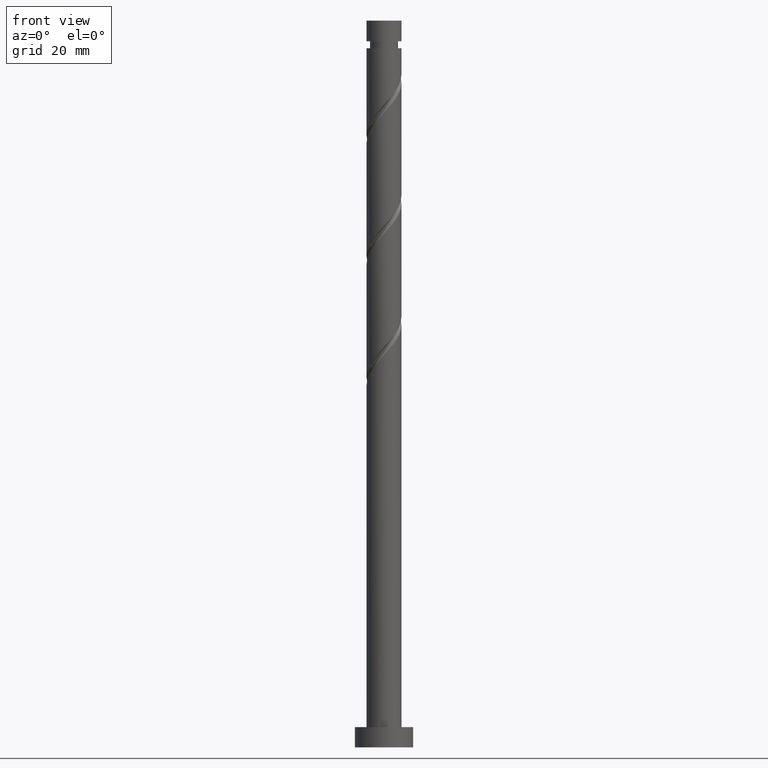
[diagram: clean part render]
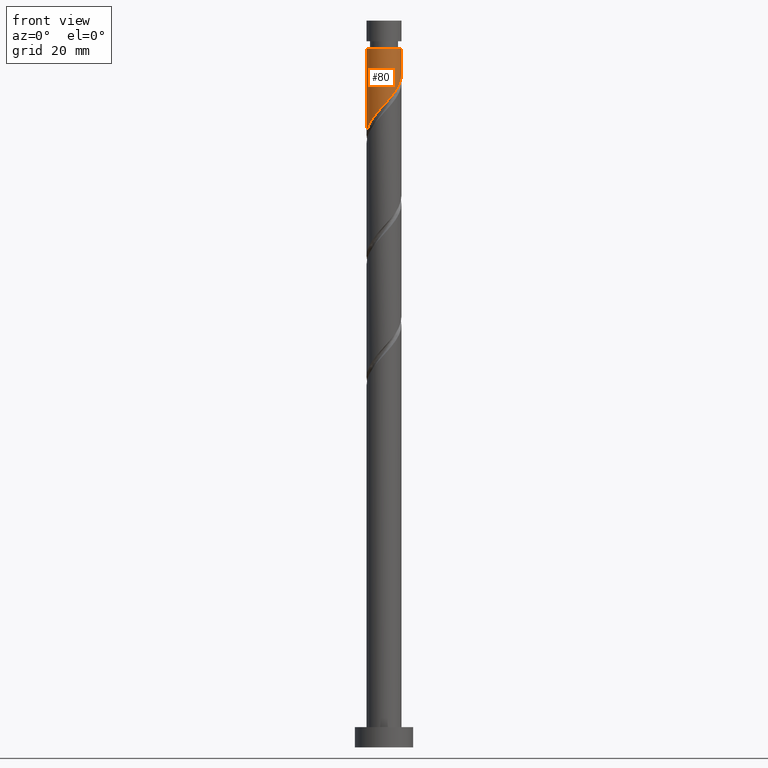
[diagram: same view with one face highlighted and labeled with its STEP entity id]
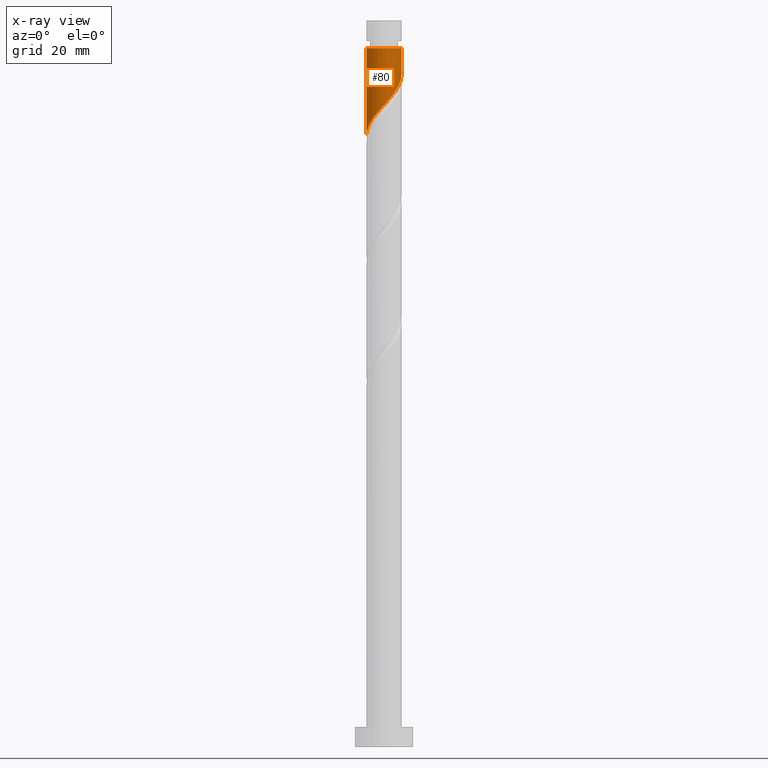
[diagram: x-ray of the same camera — body ghosted, the highlighted face saturated]
A machine part, front view. The second image highlights one B-rep face of the part: STEP entity #80.
The next image is the same camera in x-ray: the body ghosted, the highlighted face saturated — about 0% of this face is hidden behind the body in this view.
In plain terms, the highlighted cylindrical surface (edge-blend (fillet) strip) has radius 6 mm, axis along (-0, -0, -1).
Its self-contained STEP definition (entity closure, byte-faithful):
#8 = CARTESIAN_POINT ( 'NONE',  ( -3.789793397579722445, -4.651608969341807232, 216.4606896432936480 ) ) ;
#78 = EDGE_LOOP ( 'NONE', ( #171, #1062, #562, #1119 ) ) ;
#80 = ADVANCED_FACE ( 'NONE', ( #97 ), #1245, .T. ) ;
#97 = FACE_OUTER_BOUND ( 'NONE', #78, .T. ) ;
#124 = CARTESIAN_POINT ( 'NONE',  ( 0.000000000000000000, 0.000000000000000000, 240.4991511817551952 ) ) ;
#142 = CARTESIAN_POINT ( 'NONE',  ( -1.193984924527945690, -5.879999999999999005, 219.6658178484218240 ) ) ;
#171 = ORIENTED_EDGE ( 'NONE', *, *, #692, .F. ) ;
#263 = CARTESIAN_POINT ( 'NONE',  ( -5.231142575426950714, -3.027524745382286664, 214.0568434894475445 ) ) ;
#297 = CARTESIAN_POINT ( 'NONE',  ( -5.999999999999984901, 0.000000000000000000, 240.4991511817551952 ) ) ;
#337 = VERTEX_POINT ( 'NONE', #818 ) ;
#343 = EDGE_CURVE ( 'NONE', #337, #436, #529, .T. ) ;
#371 = DIRECTION ( 'NONE',  ( -1.000000000000000000, 0.000000000000000000, 0.000000000000000000 ) ) ;
#374 = CARTESIAN_POINT ( 'NONE',  ( 6.000000000000000888, -8.076206807974876637E-16, 231.4104063909803983 ) ) ;
#400 = CARTESIAN_POINT ( 'NONE',  ( 4.685773534127132933, -3.817628205472646918, 226.8773563099603621 ) ) ;
#409 = CARTESIAN_POINT ( 'NONE',  ( -2.566465998611311861, -5.423398591102451149, 218.0632537458577076 ) ) ;
#411 = VERTEX_POINT ( 'NONE', #973 ) ;
#436 = VERTEX_POINT ( 'NONE', #297 ) ;
#479 = LINE ( 'NONE', #922, #796 ) ;
#529 = CIRCLE ( 'NONE', #999, 5.999999999999984901 ) ;
#534 = CARTESIAN_POINT ( 'NONE',  ( -1.907946185874840106, -5.735023982526336717, 218.8645357971398084 ) ) ;
#543 = CARTESIAN_POINT ( 'NONE',  ( 2.374906121308202334, -5.557929438497706265, 223.6722281048321292 ) ) ;
#551 = CARTESIAN_POINT ( 'NONE',  ( 3.635995241276692713, -4.828073874099260365, 225.2747922073962172 ) ) ;
#562 = ORIENTED_EDGE ( 'NONE', *, *, #727, .T. ) ;
#567 = CARTESIAN_POINT ( 'NONE',  ( -6.000000000000000888, -0.4875386312222745322, 211.1167737949954244 ) ) ;
#623 = CARTESIAN_POINT ( 'NONE',  ( -6.000000000000000888, 0.000000000000000000, 250.0000000000000000 ) ) ;
#631 = DIRECTION ( 'NONE',  ( -0.000000000000000000, -0.000000000000000000, -1.000000000000000000 ) ) ;
#671 = CARTESIAN_POINT ( 'NONE',  ( 0.000000000000000000, 0.000000000000000000, 250.0000000000000000 ) ) ;
#692 = EDGE_CURVE ( 'NONE', #337, #1569, #479, .T. ) ;
#699 = CARTESIAN_POINT ( 'NONE',  ( -5.921288396282960775, -0.9686814378549607474, 211.6529973356012988 ) ) ;
#727 = EDGE_CURVE ( 'NONE', #436, #411, #782, .T. ) ;
#782 = LINE ( 'NONE', #623, #1066 ) ;
#796 = VECTOR ( 'NONE', #1040, 1000.000000000000000 ) ;
#818 = CARTESIAN_POINT ( 'NONE',  ( 5.999999999999984901, 7.347880794884109875E-16, 240.4991511817551952 ) ) ;
#838 = CARTESIAN_POINT ( 'NONE',  ( -4.354600983811661052, -4.191444739005048881, 215.6594075920116325 ) ) ;
#846 = CARTESIAN_POINT ( 'NONE',  ( 5.463231701267900142, -2.585315862057872227, 228.4799204125244216 ) ) ;
#922 = CARTESIAN_POINT ( 'NONE',  ( 6.000000000000000888, 7.347880794884120722E-16, 250.0000000000000000 ) ) ;
#964 = DIRECTION ( 'NONE',  ( -0.000000000000000000, -0.000000000000000000, -1.000000000000000000 ) ) ;
#965 = CARTESIAN_POINT ( 'NONE',  ( -4.792871779619305883, -3.609484742193667550, 214.8581255407295316 ) ) ;
#973 = CARTESIAN_POINT ( 'NONE',  ( -6.000000000000000888, -1.555417607461828181E-15, 210.5770730576470839 ) ) ;
#984 = CARTESIAN_POINT ( 'NONE',  ( 5.693209200619056887, -1.894035110019489210, 229.2812024638064941 ) ) ;
#992 = CARTESIAN_POINT ( 'NONE',  ( 5.981047158774059014, -0.4765237502168911399, 230.8837665663705820 ) ) ;
#999 = AXIS2_PLACEMENT_3D ( 'NONE', #124, #1256, #371 ) ;
#1040 = DIRECTION ( 'NONE',  ( -0.000000000000000000, -0.000000000000000000, -1.000000000000000000 ) ) ;
#1062 = ORIENTED_EDGE ( 'NONE', *, *, #343, .T. ) ;
#1066 = VECTOR ( 'NONE', #631, 1000.000000000000000 ) ;
#1099 = CARTESIAN_POINT ( 'NONE',  ( 5.999999999999998224, -0.2386387820206284649, 231.1462354753473960 ) ) ;
#1108 = CARTESIAN_POINT ( 'NONE',  ( -0.4800236631810547161, -6.024976017473666623, 220.4670998997040101 ) ) ;
#1116 = CARTESIAN_POINT ( 'NONE',  ( 3.005450681292447079, -5.193001656298482871, 224.4735101561141164 ) ) ;
#1119 = ORIENTED_EDGE ( 'NONE', *, *, #1828, .F. ) ;
#1135 = CARTESIAN_POINT ( 'NONE',  ( 0.9757960900017889072, -5.964778346182179725, 222.0696640022680413 ) ) ;
#1205 =( BOUNDED_CURVE ( )  B_SPLINE_CURVE ( 2, ( #1267, #1099, #992, #1822, #984, #846, #1831, #400, #1545, #551, #1116, #543, #1537, #1135, #1694, #1108, #142, #534, #409, #1556, #8, #838, #965, #263, #1416, #1567, #699, #567, #1275 ),
 .UNSPECIFIED., .F., .T. ) 
 B_SPLINE_CURVE_WITH_KNOTS ( ( 3, 2, 2, 2, 2, 2, 2, 2, 2, 2, 2, 2, 2, 2, 3 ),
 ( 0.3045271625973834939, 0.3076923076923077094, 0.3173076923076922906, 0.3269230769230769273, 0.3365384615384615641, 0.3461538461538461453, 0.3557692307692307820, 0.3653846153846153633, 0.3750000000000000000, 0.3846153846153846367, 0.3942307692307692180, 0.4038461538461538547, 0.4134615384615384359, 0.4230769230769230727, 0.4295271625973832719 ),
 .UNSPECIFIED. ) 
 CURVE ( )  GEOMETRIC_REPRESENTATION_ITEM ( )  RATIONAL_B_SPLINE_CURVE ( ( 0.9061636035682756329, 0.9069090390690643932, 0.9090909090909207180, 0.9024626128164241479, 0.9090909090909207180, 0.9024626128164241479, 0.9090909090909207180, 0.9024626128164241479, 0.9090909090909207180, 0.9024626128164241479, 0.9090909090909207180, 0.9024626128164241479, 0.9090909090909207180, 0.9024626128164241479, 0.9090909090909207180, 0.9024626128164241479, 0.9090909090909207180, 0.9024626128164241479, 0.9090909090909207180, 0.9024626128164241479, 0.9090909090909207180, 0.9024626128164241479, 0.9090909090909207180, 0.9024626128164241479, 0.9090909090909207180, 0.9024626128164241479, 0.9090909090909207180, 0.9046444828382806946, 0.9061636035682754109 ) ) 
 REPRESENTATION_ITEM ( '' )  );
#1245 = CYLINDRICAL_SURFACE ( 'NONE', #1261, 6.000000000000000888 ) ;
#1256 = DIRECTION ( 'NONE',  ( -0.000000000000000000, -0.000000000000000000, -1.000000000000000000 ) ) ;
#1261 = AXIS2_PLACEMENT_3D ( 'NONE', #671, #964, #1378 ) ;
#1267 = CARTESIAN_POINT ( 'NONE',  ( 6.000000000000000888, -8.076206807974876637E-16, 231.4104063909803983 ) ) ;
#1275 = CARTESIAN_POINT ( 'NONE',  ( -6.000000000000000888, -1.555417607461827983E-15, 210.5770730576470555 ) ) ;
#1378 = DIRECTION ( 'NONE',  ( -1.000000000000000000, 0.000000000000000000, 0.000000000000000000 ) ) ;
#1416 = CARTESIAN_POINT ( 'NONE',  ( -5.517405875207487043, -2.357590381772441734, 213.2555614381654436 ) ) ;
#1537 = CARTESIAN_POINT ( 'NONE',  ( 1.675351105654996786, -5.761353892339941218, 222.8709460535500284 ) ) ;
#1545 = CARTESIAN_POINT ( 'NONE',  ( 4.160884387701912601, -4.322851039785952310, 226.0760742586782328 ) ) ;
#1556 = CARTESIAN_POINT ( 'NONE',  ( -3.224985811347786502, -5.111773199678567359, 217.2619716945757204 ) ) ;
#1567 = CARTESIAN_POINT ( 'NONE',  ( -5.803669174988022483, -1.687656018162597915, 212.4542793868833712 ) ) ;
#1569 = VERTEX_POINT ( 'NONE', #374 ) ;
#1694 = CARTESIAN_POINT ( 'NONE',  ( 0.2478862134103671233, -5.994877181827922286, 221.2683819509859688 ) ) ;
#1822 = CARTESIAN_POINT ( 'NONE',  ( 5.923186699970216296, -1.202754357981101085, 230.0824845150885380 ) ) ;
#1828 = EDGE_CURVE ( 'NONE', #1569, #411, #1205, .T. ) ;
#1831 = CARTESIAN_POINT ( 'NONE',  ( 5.074502617697516094, -3.201472033765258907, 227.6786383612423492 ) ) ;